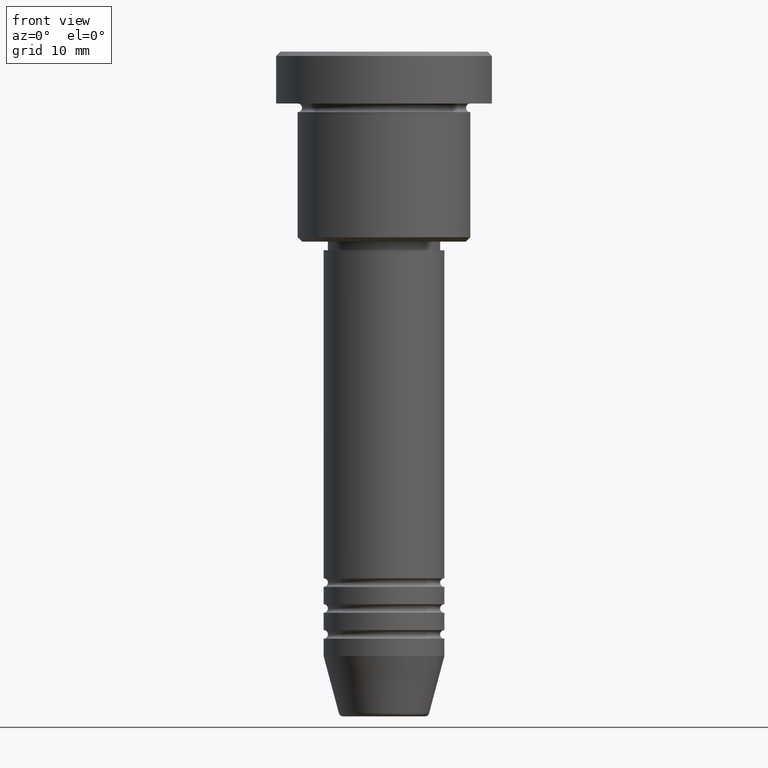
[diagram: clean part render]
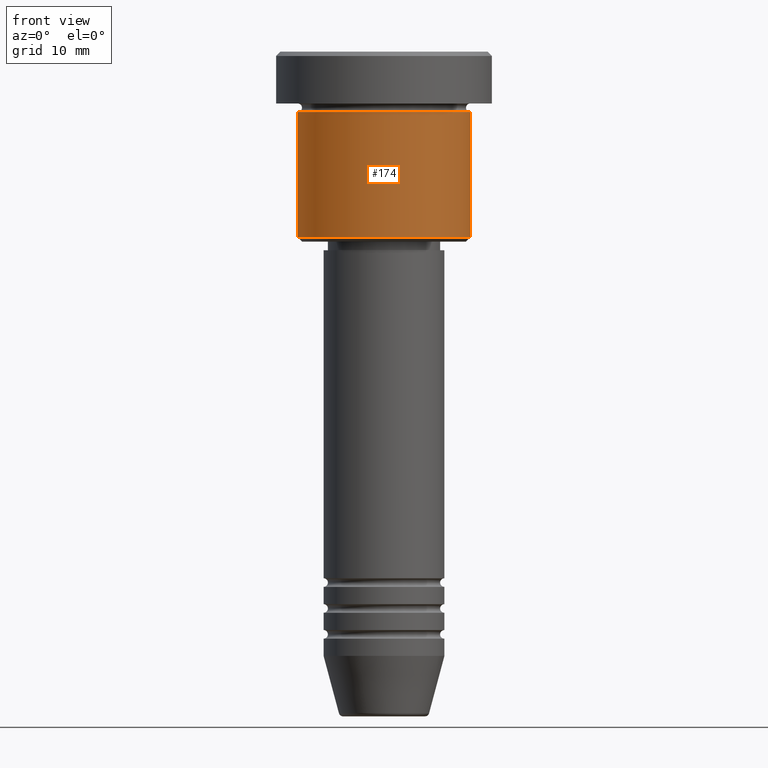
[diagram: same view with one face highlighted and labeled with its STEP entity id]
A machine part, front view. The second image highlights one B-rep face of the part: STEP entity #174.
In plain terms, the highlighted cylindrical surface (partial cylindrical patch) has radius 10 mm, axis along (-0, -0, 1).
Its self-contained STEP definition (entity closure, byte-faithful):
#7 = VERTEX_POINT ( 'NONE', #638 ) ;
#15 = AXIS2_PLACEMENT_3D ( 'NONE', #286, #521, #377 ) ;
#31 = CARTESIAN_POINT ( 'NONE',  ( 10.00000000000000000, 0.000000000000000000, -6.999999999999996447 ) ) ;
#38 = ORIENTED_EDGE ( 'NONE', *, *, #827, .T. ) ;
#48 = CARTESIAN_POINT ( 'NONE',  ( -10.00000000000000000, 1.224646799147353256E-15, -6.999999999999996447 ) ) ;
#59 = FACE_OUTER_BOUND ( 'NONE', #695, .T. ) ;
#68 = CARTESIAN_POINT ( 'NONE',  ( -10.00000000000000000, 1.224646799147353256E-15, -21.50000000000000711 ) ) ;
#102 = CARTESIAN_POINT ( 'NONE',  ( 10.00000000000000000, 0.000000000000000000, 0.000000000000000000 ) ) ;
#140 = CARTESIAN_POINT ( 'NONE',  ( -10.00000000000000000, 1.224646799147353256E-15, 0.000000000000000000 ) ) ;
#146 = ORIENTED_EDGE ( 'NONE', *, *, #278, .F. ) ;
#147 = DIRECTION ( 'NONE',  ( -0.000000000000000000, -0.000000000000000000, 1.000000000000000000 ) ) ;
#174 = ADVANCED_FACE ( 'NONE', ( #59 ), #1127, .T. ) ;
#214 = DIRECTION ( 'NONE',  ( 1.000000000000000000, 0.000000000000000000, 0.000000000000000000 ) ) ;
#245 = CARTESIAN_POINT ( 'NONE',  ( 0.000000000000000000, 0.000000000000000000, 0.000000000000000000 ) ) ;
#278 = EDGE_CURVE ( 'NONE', #424, #972, #741, .T. ) ;
#286 = CARTESIAN_POINT ( 'NONE',  ( 0.000000000000000000, 0.000000000000000000, -6.999999999999996447 ) ) ;
#340 = LINE ( 'NONE', #140, #1103 ) ;
#377 = DIRECTION ( 'NONE',  ( 1.000000000000000000, 0.000000000000000000, 0.000000000000000000 ) ) ;
#417 = DIRECTION ( 'NONE',  ( -0.000000000000000000, -0.000000000000000000, 1.000000000000000000 ) ) ;
#424 = VERTEX_POINT ( 'NONE', #48 ) ;
#513 = CARTESIAN_POINT ( 'NONE',  ( 0.000000000000000000, 0.000000000000000000, -21.50000000000000711 ) ) ;
#521 = DIRECTION ( 'NONE',  ( -0.000000000000000000, -0.000000000000000000, 1.000000000000000000 ) ) ;
#611 = DIRECTION ( 'NONE',  ( -1.000000000000000000, 0.000000000000000000, 0.000000000000000000 ) ) ;
#638 = CARTESIAN_POINT ( 'NONE',  ( 10.00000000000000000, 0.000000000000000000, -21.50000000000000711 ) ) ;
#646 = AXIS2_PLACEMENT_3D ( 'NONE', #245, #417, #214 ) ;
#684 = EDGE_CURVE ( 'NONE', #1106, #7, #971, .T. ) ;
#695 = EDGE_LOOP ( 'NONE', ( #703, #811, #38, #146 ) ) ;
#703 = ORIENTED_EDGE ( 'NONE', *, *, #1042, .F. ) ;
#741 = CIRCLE ( 'NONE', #15, 10.00000000000000000 ) ;
#811 = ORIENTED_EDGE ( 'NONE', *, *, #684, .T. ) ;
#827 = EDGE_CURVE ( 'NONE', #7, #972, #1182, .T. ) ;
#857 = AXIS2_PLACEMENT_3D ( 'NONE', #513, #882, #611 ) ;
#882 = DIRECTION ( 'NONE',  ( -0.000000000000000000, -0.000000000000000000, 1.000000000000000000 ) ) ;
#933 = VECTOR ( 'NONE', #1090, 1000.000000000000000 ) ;
#971 = CIRCLE ( 'NONE', #857, 10.00000000000000000 ) ;
#972 = VERTEX_POINT ( 'NONE', #31 ) ;
#1042 = EDGE_CURVE ( 'NONE', #1106, #424, #340, .T. ) ;
#1090 = DIRECTION ( 'NONE',  ( -0.000000000000000000, -0.000000000000000000, 1.000000000000000000 ) ) ;
#1103 = VECTOR ( 'NONE', #147, 1000.000000000000000 ) ;
#1106 = VERTEX_POINT ( 'NONE', #68 ) ;
#1127 = CYLINDRICAL_SURFACE ( 'NONE', #646, 10.00000000000000000 ) ;
#1182 = LINE ( 'NONE', #102, #933 ) ;